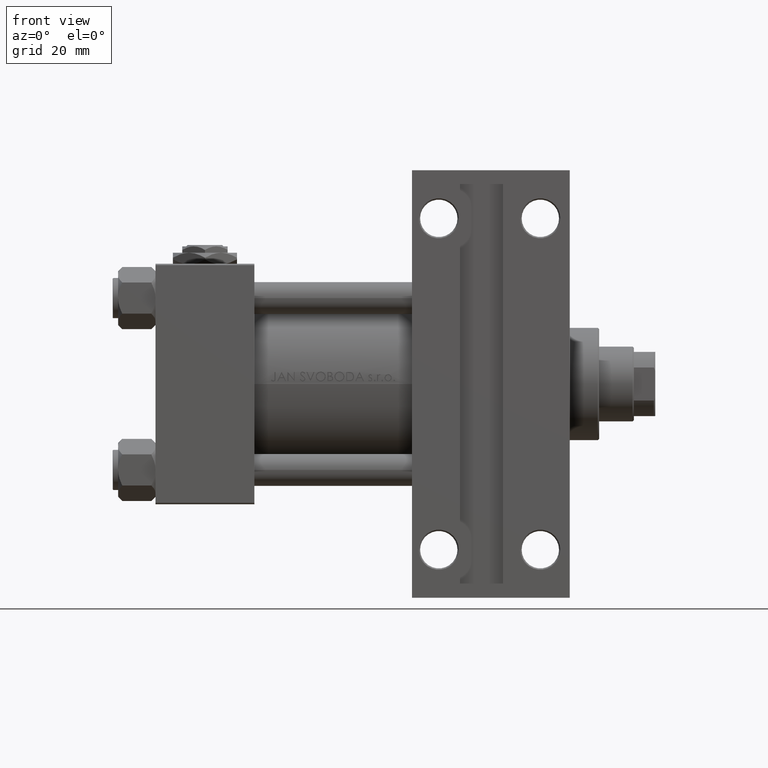
[diagram: clean part render]
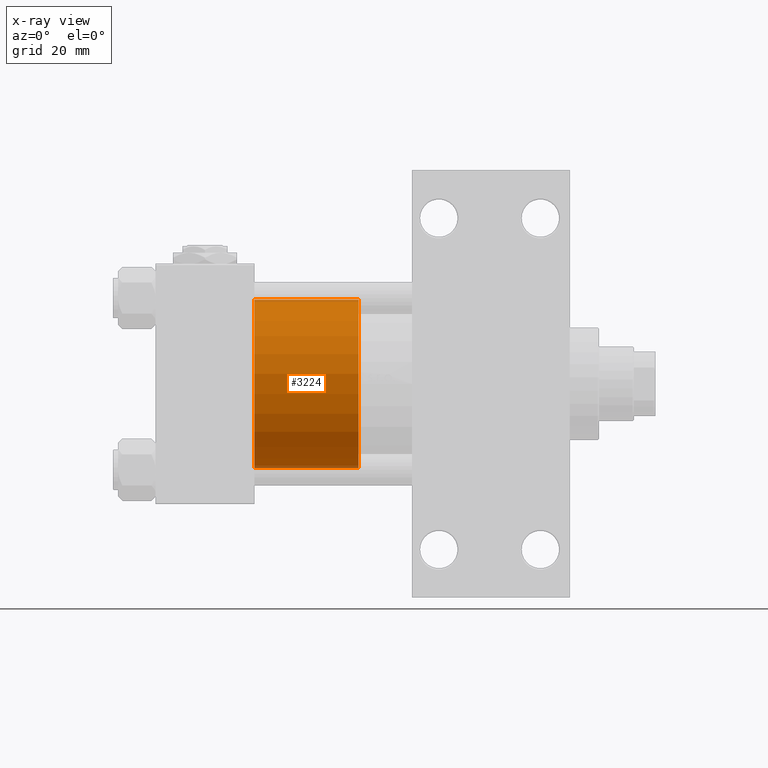
[diagram: x-ray — body ghosted, one internal face saturated and labeled with its STEP entity id]
A machine part, front view, then the same camera in x-ray: the body is ghosted and one INTERNAL B-rep face — a face not visible from any outside direction — is saturated and labeled: STEP entity #3224.
In plain terms, the highlighted cylindrical surface (partial cylindrical patch) has radius 31.5 mm, axis along (-1, 0, 0).
Its self-contained STEP definition (entity closure, byte-faithful):
#2989 = ORIENTED_EDGE ( 'NONE', *, *, #36739, .F. ) ;
#3224 = ADVANCED_FACE ( 'NONE', ( #36396 ), #43942, .T. ) ;
#3442 = CARTESIAN_POINT ( 'NONE',  ( 0.000000000000000000, 0.000000000000000000, 39.00000000000000000 ) ) ;
#5249 = DIRECTION ( 'NONE',  ( -1.000000000000000000, 0.000000000000000000, 0.000000000000000000 ) ) ;
#5252 = CARTESIAN_POINT ( 'NONE',  ( -31.50000000000000000, 0.000000000000000000, 39.00000000000000000 ) ) ;
#6310 = CIRCLE ( 'NONE', #40831, 31.50000000000000000 ) ;
#7619 = DIRECTION ( 'NONE',  ( -0.000000000000000000, -0.000000000000000000, -1.000000000000000000 ) ) ;
#9654 = EDGE_CURVE ( 'NONE', #22711, #43488, #17299, .T. ) ;
#10627 = VERTEX_POINT ( 'NONE', #17591 ) ;
#10794 = VERTEX_POINT ( 'NONE', #5252 ) ;
#10873 = LINE ( 'NONE', #11128, #37641 ) ;
#10910 = CARTESIAN_POINT ( 'NONE',  ( 31.50000000000000000, 3.857637417314162689E-15, 0.000000000000000000 ) ) ;
#11128 = CARTESIAN_POINT ( 'NONE',  ( 31.50000000000000000, 3.857637417314162689E-15, 39.00000000000000000 ) ) ;
#13008 = DIRECTION ( 'NONE',  ( -0.000000000000000000, -0.000000000000000000, -1.000000000000000000 ) ) ;
#13813 = DIRECTION ( 'NONE',  ( 1.000000000000000000, 0.000000000000000000, 0.000000000000000000 ) ) ;
#14723 = DIRECTION ( 'NONE',  ( 1.000000000000000000, 0.000000000000000000, 0.000000000000000000 ) ) ;
#16684 = VECTOR ( 'NONE', #31374, 1000.000000000000000 ) ;
#17299 = CIRCLE ( 'NONE', #26970, 31.50000000000000000 ) ;
#17591 = CARTESIAN_POINT ( 'NONE',  ( 31.50000000000000000, 3.857637417314162689E-15, 39.00000000000000000 ) ) ;
#20496 = EDGE_CURVE ( 'NONE', #10627, #22711, #10873, .T. ) ;
#21087 = ORIENTED_EDGE ( 'NONE', *, *, #35468, .F. ) ;
#21558 = CARTESIAN_POINT ( 'NONE',  ( 0.000000000000000000, 0.000000000000000000, 39.00000000000000000 ) ) ;
#22711 = VERTEX_POINT ( 'NONE', #10910 ) ;
#25882 = DIRECTION ( 'NONE',  ( 0.000000000000000000, 0.000000000000000000, 1.000000000000000000 ) ) ;
#26049 = DIRECTION ( 'NONE',  ( 0.000000000000000000, 0.000000000000000000, 1.000000000000000000 ) ) ;
#26970 = AXIS2_PLACEMENT_3D ( 'NONE', #28900, #25882, #13813 ) ;
#27600 = LINE ( 'NONE', #28081, #16684 ) ;
#28081 = CARTESIAN_POINT ( 'NONE',  ( -31.50000000000000000, 0.000000000000000000, 39.00000000000000000 ) ) ;
#28360 = CARTESIAN_POINT ( 'NONE',  ( -31.50000000000000000, 0.000000000000000000, 0.000000000000000000 ) ) ;
#28900 = CARTESIAN_POINT ( 'NONE',  ( 0.000000000000000000, 0.000000000000000000, 0.000000000000000000 ) ) ;
#30798 = AXIS2_PLACEMENT_3D ( 'NONE', #21558, #13008, #5249 ) ;
#31374 = DIRECTION ( 'NONE',  ( -0.000000000000000000, -0.000000000000000000, -1.000000000000000000 ) ) ;
#34546 = ORIENTED_EDGE ( 'NONE', *, *, #20496, .T. ) ;
#35441 = EDGE_LOOP ( 'NONE', ( #2989, #34546, #45253, #21087 ) ) ;
#35468 = EDGE_CURVE ( 'NONE', #10794, #43488, #27600, .T. ) ;
#36396 = FACE_OUTER_BOUND ( 'NONE', #35441, .T. ) ;
#36739 = EDGE_CURVE ( 'NONE', #10627, #10794, #6310, .T. ) ;
#37641 = VECTOR ( 'NONE', #7619, 1000.000000000000000 ) ;
#40831 = AXIS2_PLACEMENT_3D ( 'NONE', #3442, #26049, #14723 ) ;
#43488 = VERTEX_POINT ( 'NONE', #28360 ) ;
#43942 = CYLINDRICAL_SURFACE ( 'NONE', #30798, 31.50000000000000000 ) ;
#45253 = ORIENTED_EDGE ( 'NONE', *, *, #9654, .T. ) ;